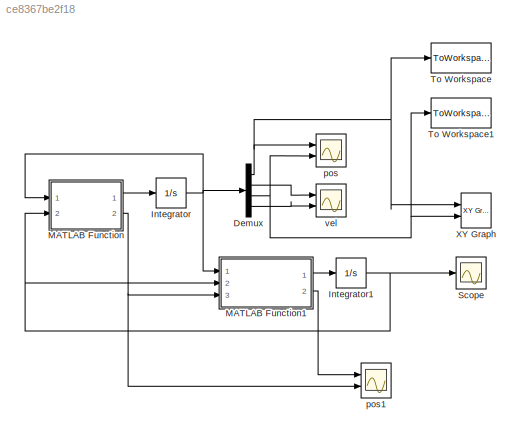
MODEL slx_ce8367be2f18
KIND model
BLOCK [Demux] Demux
  DisplayOption = bar
  Ports = [1, 4]
BLOCK [Integrator] Integrator
  InitialCondition = [0.35;0;0.35;0]
  Ports = [1, 1]
BLOCK [Integrator] Integrator1
  InitialCondition = [0.35;0.35]
  Ports = [1, 1]
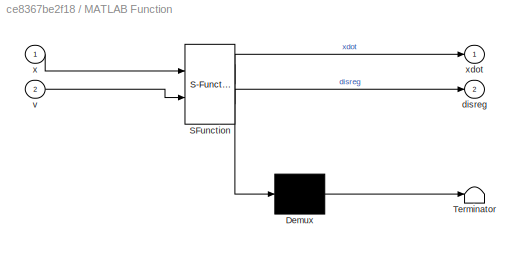
BLOCK [SubSystem] MATLAB Function
  ErrorFcn = Stateflow.Translate.translate
  PermitHierarchicalResolution = ExplicitOnly
  Ports = [2, 2]
  RequestExecContextInheritance = off
  SFBlockType = MATLAB Function
  TreatAsAtomicUnit = on
BLOCK [Demux] MATLAB Function/ Demux 
  Outputs = 1
  Ports = [1, 1]
BLOCK [S-Function] MATLAB Function/ SFunction 
  EnableBusSupport = on
  FunctionName = sf_sfun
  PortCounts = [2 3]
  Ports = [2, 3]
  Tag = Stateflow S-Function untitled 2
BLOCK [Terminator] MATLAB Function/ Terminator 
BLOCK [Outport] MATLAB Function/disreg
  IconDisplay = Port number
  Port = 2
BLOCK [Inport] MATLAB Function/v
  IconDisplay = Port number
  Port = 2
BLOCK [Inport] MATLAB Function/x
  IconDisplay = Port number
BLOCK [Outport] MATLAB Function/xdot
  IconDisplay = Port number
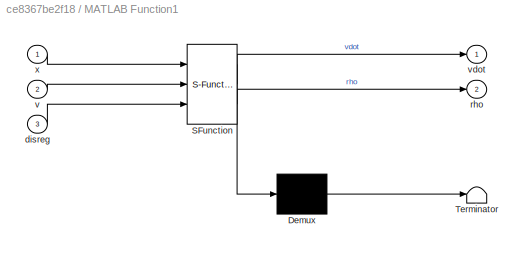
BLOCK [SubSystem] MATLAB Function1
  ErrorFcn = Stateflow.Translate.translate
  PermitHierarchicalResolution = ExplicitOnly
  Ports = [3, 2]
  RequestExecContextInheritance = off
  SFBlockType = MATLAB Function
  TreatAsAtomicUnit = on
BLOCK [Demux] MATLAB Function1/ Demux 
  Outputs = 1
  Ports = [1, 1]
BLOCK [S-Function] MATLAB Function1/ SFunction 
  EnableBusSupport = on
  FunctionName = sf_sfun
  PortCounts = [3 3]
  Ports = [3, 3]
  Tag = Stateflow S-Function untitled 1
BLOCK [Terminator] MATLAB Function1/ Terminator 
BLOCK [Inport] MATLAB Function1/disreg
  IconDisplay = Port number
  Port = 3
BLOCK [Outport] MATLAB Function1/rho
  IconDisplay = Port number
  Port = 2
BLOCK [Inport] MATLAB Function1/v
  IconDisplay = Port number
  Port = 2
BLOCK [Outport] MATLAB Function1/vdot
  IconDisplay = Port number
BLOCK [Inport] MATLAB Function1/x
  IconDisplay = Port number
BLOCK [Scope] Scope
  DataFormat = StructureWithTime
  Floating = off
  NumInputPorts = 1
  Ports = [1]
  SampleTime = 0
  SaveName = v
  SaveToWorkspace = on
  ShowLegends = off
BLOCK [ToWorkspace] To Workspace
  FixptAsFi = on
  MaxDataPoints = inf
  Ports = [1]
  SampleTime = 0.01
  Save2DSignal = 3-D array (concatenate along third dimension)
  SaveFormat = Structure With Time
  VariableName = x
BLOCK [ToWorkspace] To Workspace1
  FixptAsFi = on
  MaxDataPoints = inf
  Ports = [1]
  SampleTime = 0.01
  Save2DSignal = 3-D array (concatenate along third dimension)
  SaveFormat = Structure With Time
  VariableName = y
BLOCK [Reference] XY Graph  REF=simulink/Sinks/XY Graph
  Ports = [2]
  SourceBlock = simulink/Sinks/XY Graph
  SourceType = XY scope.
  st = -1
  xmax = 2
  xmin = 0
  ymax = 2
  ymin = 0
BLOCK [Scope] pos
  DataFormat = StructureWithTime
  Floating = off
  LegendLocations = 0.90325     0.91519    0.074671     0.02999\n0.90325     0.45059    0.074671     0.02999
  LimitDataPoints = off
  NumInputPorts = 2
  Ports = [2]
  SampleTime = 0
  ShowLegends = on
  YMax = 1.5175~5
  YMin = 1.4875~-5
  ZoomMode = yonly
BLOCK [Scope] pos1
  DataFormat = StructureWithTime
  Floating = off
  LegendLocations = 0.83736     0.91667     0.13177    0.053097\n0.83725    0.081156     0.13031     0.02999
  LimitDataPoints = off
  NumInputPorts = 2
  Ports = [2]
  SampleTime = 0
  SaveName = ScopeData1
  ShowLegends = on
  YMax = 1~0.15468
  YMin = -0.6~0.139948
  ZoomMode = yonly
BLOCK [Scope] vel
  DataFormat = StructureWithTime
  Floating = off
  LegendLocations = 0.90325     0.91519    0.074671     0.02999\n0.90325     0.45059    0.074671     0.02999
  LimitDataPoints = off
  NumInputPorts = 2
  Ports = [2]
  SampleTime = 0
  SaveName = ScopeData2
  ShowLegends = on
  YMax = 5~5
  YMin = -5~-5
  ZoomMode = yonly
NET Demux:1 -> To Workspace:1, XY Graph:1, pos:1
LINE Demux:2 -> vel:1
NET Demux:3 -> To Workspace1:1, XY Graph:2, pos:2
LINE Demux:4 -> vel:2
NET Integrator1:1 -> MATLAB Function1:2, MATLAB Function:2, Scope:1
NET Integrator:1 -> Demux:1, MATLAB Function1:1, MATLAB Function:1
LINE MATLAB Function1:1 -> Integrator1:1
LINE MATLAB Function1:2 -> pos1:1
LINE MATLAB Function:1 -> Integrator:1
NET MATLAB Function:2 -> MATLAB Function1:3, pos1:2
note: NET lines group one-source signal fan-out (src -> all destinations, sorted); 1:1 wires keep LINE
